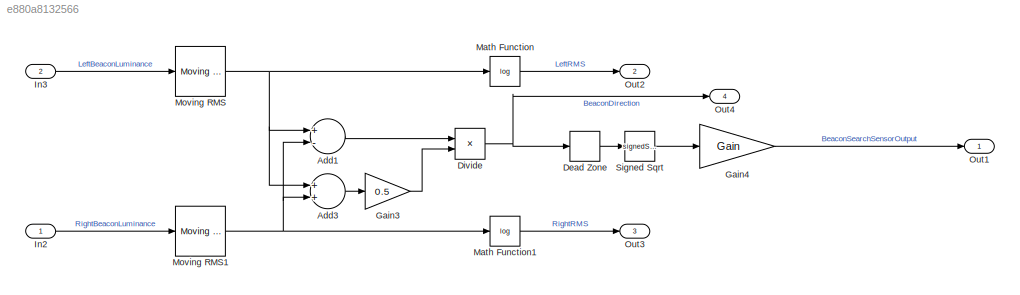
MODEL slx_e880a8132566
KIND model
CONFIG AbsTol = auto
CONFIG EnableMultiTasking = off
CONFIG FixedStep = auto
CONFIG MaxStep = auto
CONFIG MinStep = auto
CONFIG RelTol = 1e-3
CONFIG SampleTimeConstraint = Unconstrained
CONFIG Solver = FixedStepDiscrete
CONFIG SolverName = FixedStepDiscrete
CONFIG StartTime = 0.0
CONFIG StopTime = 10
WORKSPACE source: MAT-file member
WORKSPACE MCOS: class17 (value not decoded)
BLOCK [Sum] Add1
  InputSameDT = off
  Inputs = +-
  OutDataTypeStr = Inherit: Inherit via internal rule
  Ports = [2, 1]
  SaturateOnIntegerOverflow = off
BLOCK [Sum] Add3
  InputSameDT = off
  OutDataTypeStr = Inherit: Inherit via internal rule
  Ports = [2, 1]
  SaturateOnIntegerOverflow = off
BLOCK [DeadZone] Dead Zone
  LowerValue = -0.01
  UpperValue = 0.01
BLOCK [Product] Divide
  InputSameDT = off
  Inputs = */
  OutDataTypeStr = Inherit: Inherit via internal rule
  Ports = [2, 1]
  RndMeth = Floor
  SaturateOnIntegerOverflow = off
BLOCK [Gain] Gain3
  Gain = 0.5
  OutDataTypeStr = Inherit: Inherit via internal rule
  ParamDataTypeStr = Inherit: Inherit via internal rule
  SaturateOnIntegerOverflow = off
BLOCK [Gain] Gain4
  Gain = Gain
  OutDataTypeStr = Inherit: Inherit via internal rule
  ParamDataTypeStr = Inherit: Inherit via internal rule
  SaturateOnIntegerOverflow = off
BLOCK [Inport] In2
  IconDisplay = Port number
BLOCK [Inport] In3
  IconDisplay = Port number
  Port = 2
BLOCK [Math] Math Function
  Operator = log
  Ports = [1, 1]
BLOCK [Math] Math Function1
  Operator = log
  Ports = [1, 1]
BLOCK [Reference] Moving RMS  REF=dspstat3/Moving
RMS
  Ports = [1, 1]
  SourceBlock = dspstat3/Moving\nRMS
  SourceProductBaseCode = DS
  SourceProductName = DSP System Toolbox
  SourceType = dsp.simulink.MovingRMS
BLOCK [Reference] Moving RMS1  REF=dspstat3/Moving
RMS
  Ports = [1, 1]
  SourceBlock = dspstat3/Moving\nRMS
  SourceProductBaseCode = DS
  SourceProductName = DSP System Toolbox
  SourceType = dsp.simulink.MovingRMS
BLOCK [Outport] Out1
  IconDisplay = Port number
BLOCK [Outport] Out2
  IconDisplay = Port number
  Port = 2
BLOCK [Outport] Out3
  IconDisplay = Port number
  Port = 3
BLOCK [Outport] Out4
  IconDisplay = Port number
  Port = 4
BLOCK [Sqrt] Signed Sqrt
  Operator = signedSqrt
LINE Add1:1 -> Divide:1
LINE Add3:1 -> Gain3:1
LINE Dead Zone:1 -> Signed Sqrt:1
NET Divide:1 -> Dead Zone:1, Out4:1
LINE Gain3:1 -> Divide:2
LINE Gain4:1 -> Out1:1
LINE In2:1 -> Moving RMS1:1
LINE In3:1 -> Moving RMS:1
LINE Math Function1:1 -> Out3:1
LINE Math Function:1 -> Out2:1
NET Moving RMS1:1 -> Add1:2, Add3:2, Math Function1:1
NET Moving RMS:1 -> Add1:1, Add3:1, Math Function:1
LINE Signed Sqrt:1 -> Gain4:1
note: NET lines group one-source signal fan-out (src -> all destinations, sorted); 1:1 wires keep LINE
